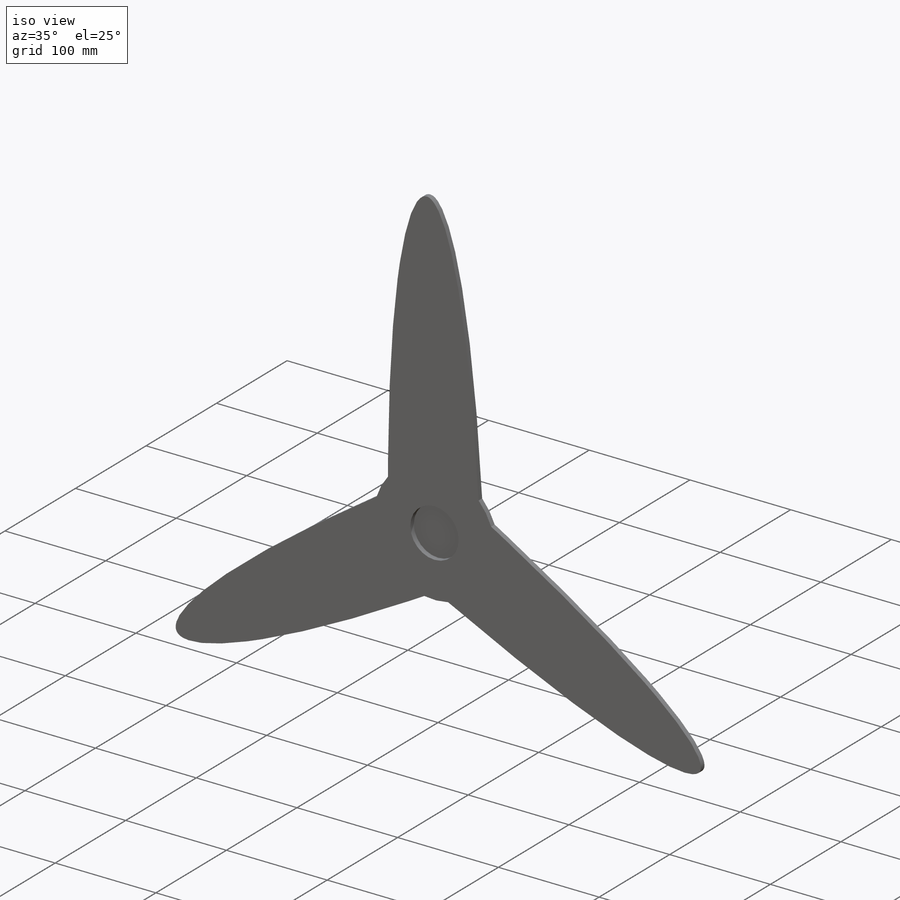
[diagram: iso view]
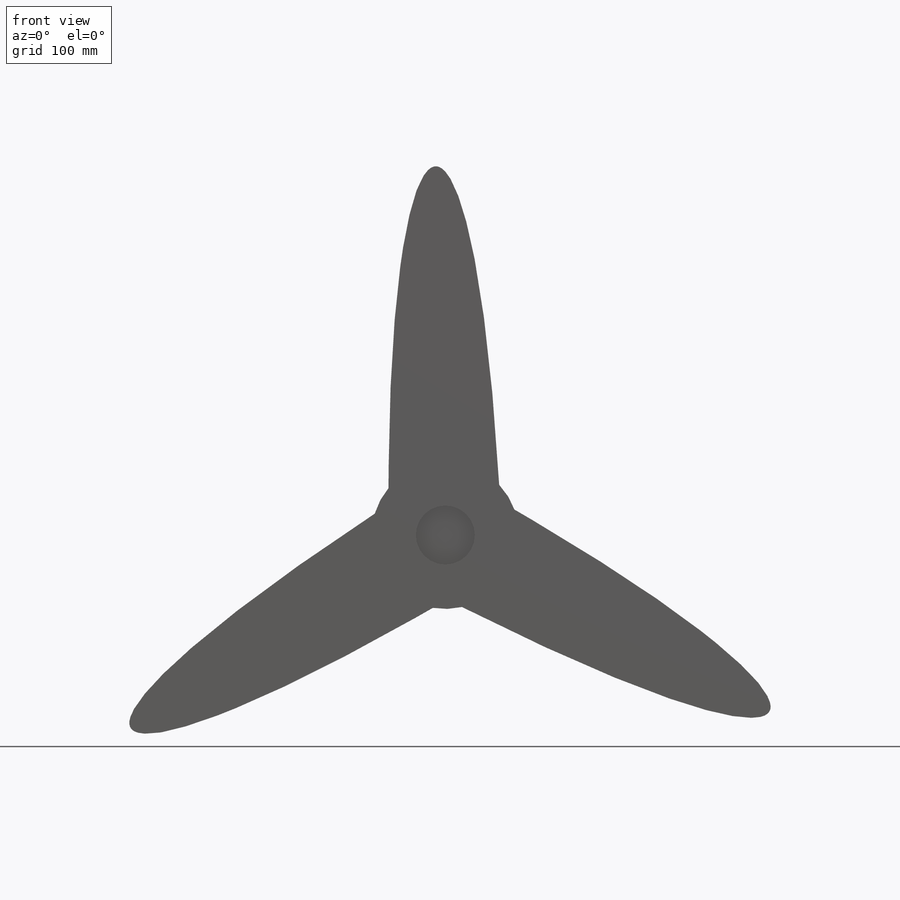
[diagram: front view]
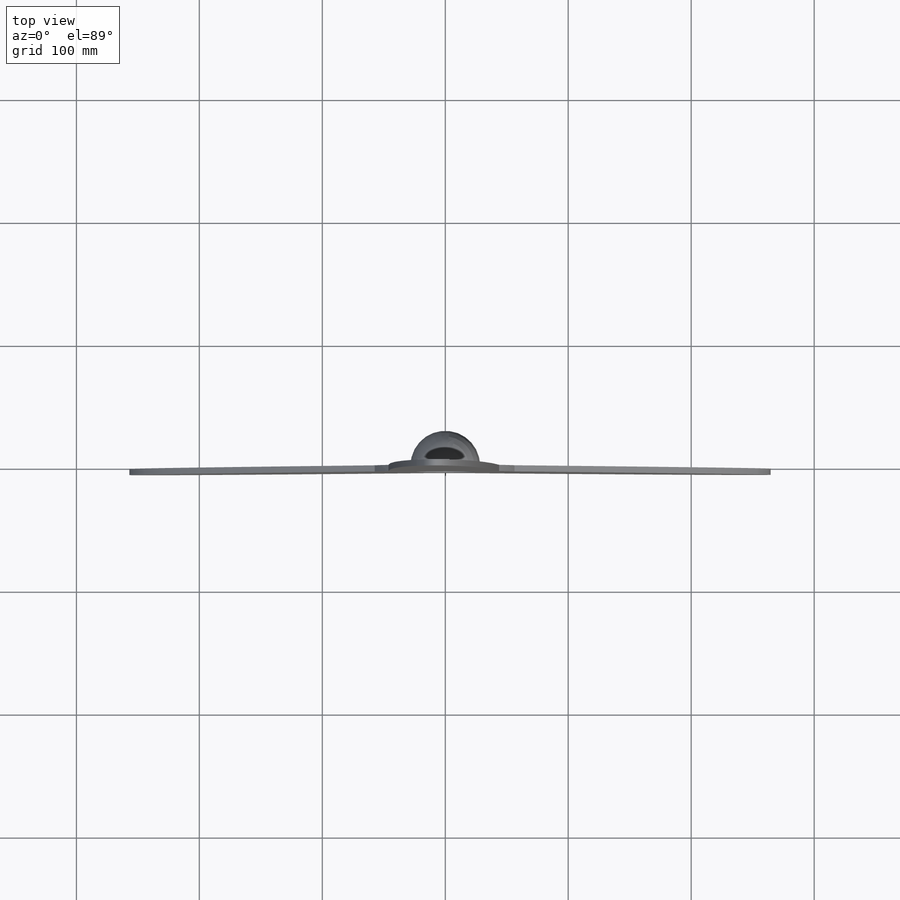
[diagram: top view]
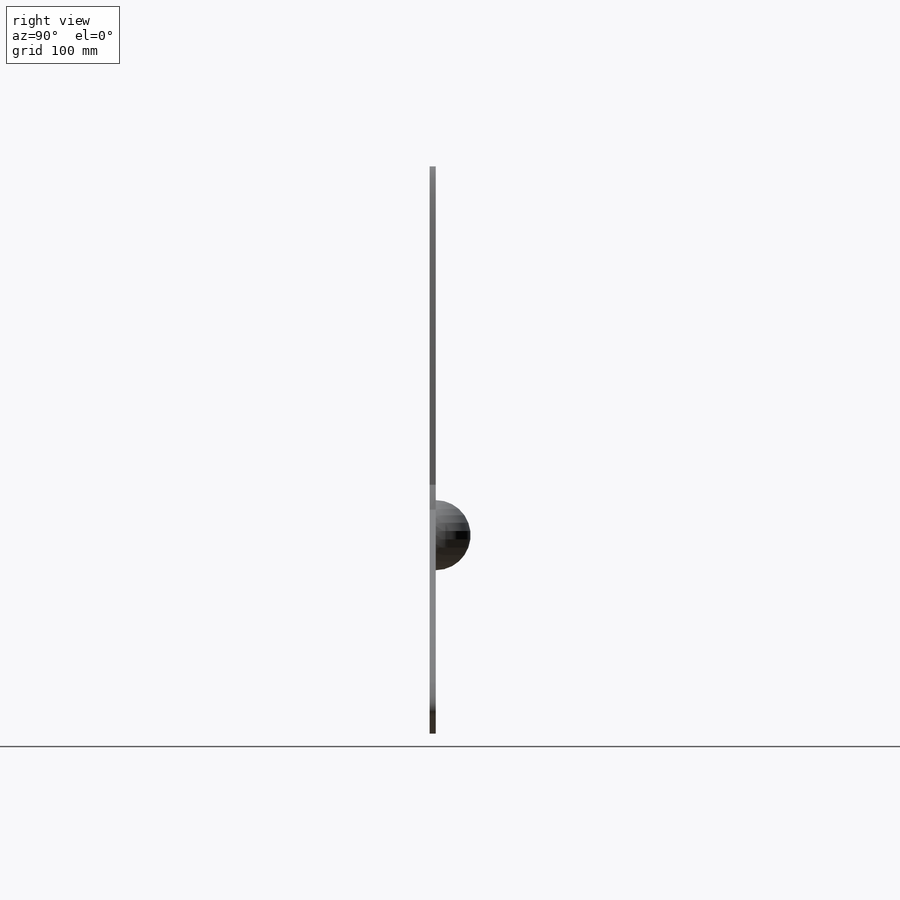
[diagram: right view]
SOLIDWORKS PART (.sldprt)
format: sldprt  version: not decoded by parser v0  size: 148,480 bytes
history: native  units: mm
features: sketch x2, material x1, extrude x1, pattern_circular x1, revolve x1 (+13 scaffold rows collapsed)
feature tree (19):
  scaffold x13  (default folders/planes/origin — collapsed)
  material  "Material <not specified>"
  sketch  "Sketch1"  dims[c1.D1=120.0mm c1.D2=57.0mm c1.D3=48.0mm c1.D4=600.0mm c1.D5=600.0mm c1.D6=3.0mm c2.D4=600.0mm c2.D5=90.0mm c2.D6=45.0mm]
  extrude  "Boss-Extrude2"  Depth=5mm
  sketch  "Sketch2"  dims[c1.D1=120.0mm c1.D2=60.0mm c2.D1=57.0mm]
  pattern_circular  "CirPattern1"  Count=3 Angle=120deg
  revolve  "Revolve1"  Angle=180deg
decode coverage: 5 of 5 modeling features carry decoded parameters
note: suppression state not decoded; provenance and decode notes live in map.json
